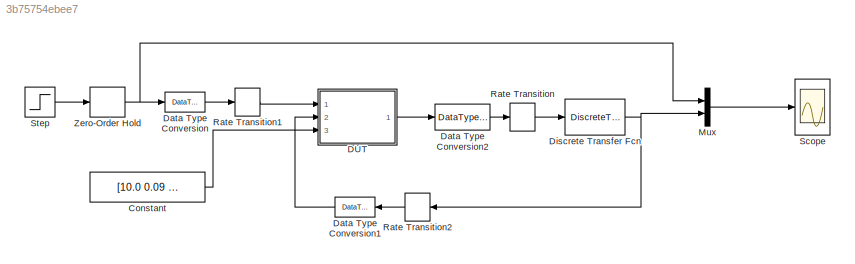
MODEL slx_3b75754ebee7
KIND model
CONFIG AbsTol = auto
CONFIG FixedStep = auto
CONFIG MaxStep = auto
CONFIG MinStep = auto
CONFIG RelTol = 1e-3
CONFIG SampleTimeConstraint = Unconstrained
CONFIG Solver = FixedStepDiscrete
CONFIG SolverMode = SingleTasking
CONFIG SolverName = FixedStepDiscrete
CONFIG StartTime = 0.0
CONFIG StopTime = 10
BLOCK [Constant] Constant
  OutDataTypeStr = fixdt(0,16,11)
  SampleTime = -1
  Value = [10.0 0.09 0.1]
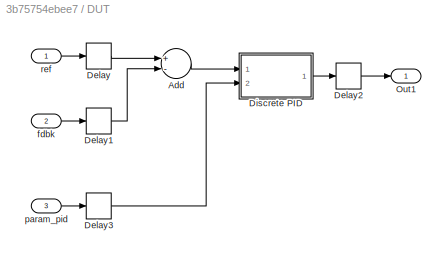
BLOCK [SubSystem] DUT
  Ports = [3, 1]
  RequestExecContextInheritance = off
  Variant = off
BLOCK [Sum] DUT/Add
  InputSameDT = off
  Inputs = +-
  OutDataTypeStr = fixdt(1,24,19)
  Ports = [2, 1]
  RndMeth = Nearest
  SaturateOnIntegerOverflow = off
BLOCK [Delay] DUT/Delay
  DelayLength = 1
  InputPortMap = u0
  Ports = [1, 1]
BLOCK [Delay] DUT/Delay1
  DelayLength = 1
  InputPortMap = u0
  Ports = [1, 1]
BLOCK [Delay] DUT/Delay2
  DelayLength = 1
  InputPortMap = u0
  Ports = [1, 1]
BLOCK [Delay] DUT/Delay3
  DelayLength = 1
  InputPortMap = u0
  Ports = [1, 1]
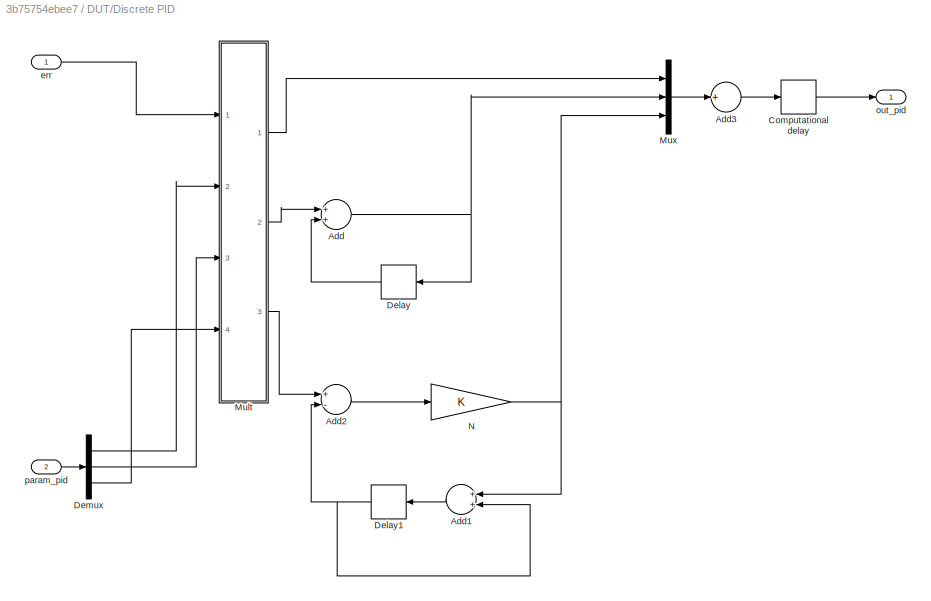
BLOCK [SubSystem] DUT/Discrete PID
  Ports = [2, 1]
  RequestExecContextInheritance = off
  Variant = off
BLOCK [Sum] DUT/Discrete PID/Add
  InputSameDT = off
  Ports = [2, 1]
  SaturateOnIntegerOverflow = off
BLOCK [Sum] DUT/Discrete PID/Add1
  InputSameDT = off
  Ports = [2, 1]
  SaturateOnIntegerOverflow = off
BLOCK [Sum] DUT/Discrete PID/Add2
  InputSameDT = off
  Inputs = +-
  Ports = [2, 1]
  SaturateOnIntegerOverflow = off
BLOCK [Sum] DUT/Discrete PID/Add3
  InputSameDT = off
  Inputs = +
  OutDataTypeStr = Inherit: Inherit via internal rule
  Ports = [1, 1]
  SaturateOnIntegerOverflow = off
BLOCK [Delay] DUT/Discrete PID/Computational delay
  DelayLength = 1
  InputPortMap = u0
  InputProcessing = Inherited
  Ports = [1, 1]
BLOCK [Delay] DUT/Discrete PID/Delay
  DelayLength = 1
  InputPortMap = u0
  InputProcessing = Inherited
  Ports = [1, 1]
BLOCK [Delay] DUT/Discrete PID/Delay1
  DelayLength = 1
  InputPortMap = u0
  InputProcessing = Inherited
  Ports = [1, 1]
BLOCK [Demux] DUT/Discrete PID/Demux
  DisplayOption = bar
  Outputs = 3
  Ports = [1, 3]
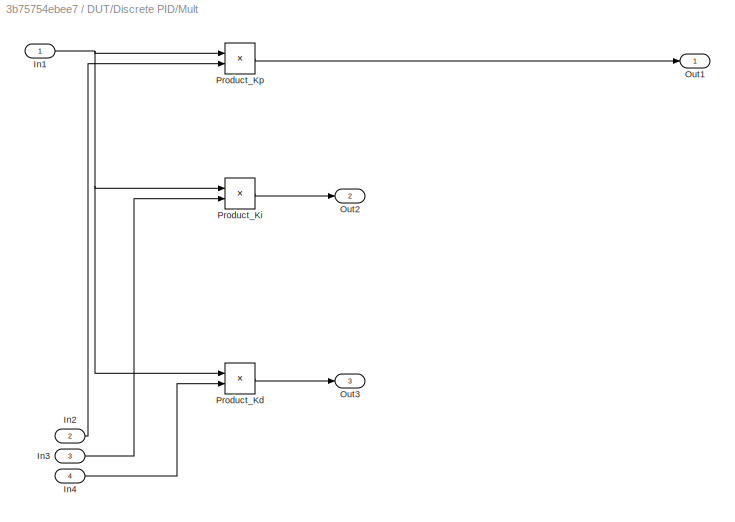
BLOCK [SubSystem] DUT/Discrete PID/Mult
  AttributesFormatString = ----HDL----\nSharingFactor = 3
  Ports = [4, 3]
  RequestExecContextInheritance = off
  Variant = off
BLOCK [Inport] DUT/Discrete PID/Mult/In1
  IconDisplay = Port number
BLOCK [Inport] DUT/Discrete PID/Mult/In2
  IconDisplay = Port number
  Port = 2
BLOCK [Inport] DUT/Discrete PID/Mult/In3
  IconDisplay = Port number
  Port = 3
BLOCK [Inport] DUT/Discrete PID/Mult/In4
  IconDisplay = Port number
  Port = 4
BLOCK [Outport] DUT/Discrete PID/Mult/Out1
  IconDisplay = Port number
BLOCK [Outport] DUT/Discrete PID/Mult/Out2
  IconDisplay = Port number
  Port = 2
BLOCK [Outport] DUT/Discrete PID/Mult/Out3
  IconDisplay = Port number
  Port = 3
BLOCK [Product] DUT/Discrete PID/Mult/Product_Kd
  InputSameDT = off
  OutDataTypeStr = fixdt(1,28,23)
  Ports = [2, 1]
  RndMeth = Nearest
  SaturateOnIntegerOverflow = off
BLOCK [Product] DUT/Discrete PID/Mult/Product_Ki
  InputSameDT = off
  OutDataTypeStr = fixdt(1,28,23)
  Ports = [2, 1]
  RndMeth = Nearest
  SaturateOnIntegerOverflow = off
BLOCK [Product] DUT/Discrete PID/Mult/Product_Kp
  InputSameDT = off
  OutDataTypeStr = fixdt(1,28,23)
  Ports = [2, 1]
  RndMeth = Nearest
  SaturateOnIntegerOverflow = off
BLOCK [Mux] DUT/Discrete PID/Mux
  DisplayOption = bar
  Inputs = 3
  Ports = [3, 1]
BLOCK [Gain] DUT/Discrete PID/N
  ParamDataTypeStr = fixdt(0,10,6)
  RndMeth = Nearest
  SaturateOnIntegerOverflow = off
BLOCK [Inport] DUT/Discrete PID/err
  IconDisplay = Port number
BLOCK [Outport] DUT/Discrete PID/out_pid
  IconDisplay = Port number
BLOCK [Inport] DUT/Discrete PID/param_pid
  IconDisplay = Port number
  Port = 2
BLOCK [Outport] DUT/Out1
  IconDisplay = Port number
BLOCK [Inport] DUT/fdbk
  IconDisplay = Port number
  Port = 2
BLOCK [Inport] DUT/param_pid
  IconDisplay = Port number
  Port = 3
BLOCK [Inport] DUT/ref
  IconDisplay = Port number
BLOCK [DataTypeConversion] Data Type Conversion
  OutDataTypeStr = fixdt(1,24,22)
  RndMeth = Nearest
  SaturateOnIntegerOverflow = off
BLOCK [DataTypeConversion] Data Type Conversion1
  OutDataTypeStr = fixdt(1,24,20)
  RndMeth = Nearest
  SaturateOnIntegerOverflow = off
BLOCK [DataTypeConversion] Data Type Conversion2
  OutDataTypeStr = double
  RndMeth = Nearest
  SaturateOnIntegerOverflow = off
BLOCK [DiscreteTransferFcn] Discrete Transfer Fcn
  Denominator = [1 -1.995 0.995]
  InputPortMap = u0
  Numerator = [0.998 0.001 -0.997]*1e-3
  Ports = [1, 1]
  SampleTime = 1/1000
BLOCK [Mux] Mux
  DisplayOption = bar
  Inputs = 2
  Ports = [2, 1]
BLOCK [RateTransition] Rate Transition
  OutPortSampleTime = 1/1000
BLOCK [RateTransition] Rate Transition1
  OutPortSampleTime = 1/1000
BLOCK [RateTransition] Rate Transition2
  OutPortSampleTime = 1/1000
BLOCK [Scope] Scope
  Ports = [1]
  ScopeSpecificationString = Simulink.scopes.TimeScopeBlockCfg('CurrentConfiguration', extmgr.ConfigurationSet(extmgr.Configuration('Core','General UI',true),extmgr.Configuration('Core','Source UI',true),extmgr.Configuration('Sources','WiredSimulink',true,'DataLoggingSaveFormat','StructureWithTime','DataLoggingDecimation','1','DataLoggingDecimateData',true),extmgr.Configuration('Visuals','Time Domain',true,'SerializedDisplays...<+1687ch>
BLOCK [Step] Step
  SampleTime = 0
BLOCK [ZeroOrderHold] Zero-Order Hold
  SampleTime = 1/1000
LINE Constant:1 -> DUT:3
LINE DUT/Add:1 -> DUT/Discrete PID:1
LINE DUT/Delay1:1 -> DUT/Add:2
LINE DUT/Delay2:1 -> DUT/Out1:1
LINE DUT/Delay3:1 -> DUT/Discrete PID:2
LINE DUT/Delay:1 -> DUT/Add:1
LINE DUT/Discrete PID/Add1:1 -> DUT/Discrete PID/Delay1:1
LINE DUT/Discrete PID/Add2:1 -> DUT/Discrete PID/N:1
LINE DUT/Discrete PID/Add3:1 -> DUT/Discrete PID/Computational delay:1
NET DUT/Discrete PID/Add:1 -> DUT/Discrete PID/Delay:1, DUT/Discrete PID/Mux:2
LINE DUT/Discrete PID/Computational delay:1 -> DUT/Discrete PID/out_pid:1
NET DUT/Discrete PID/Delay1:1 -> DUT/Discrete PID/Add1:2, DUT/Discrete PID/Add2:2
LINE DUT/Discrete PID/Delay:1 -> DUT/Discrete PID/Add:2
LINE DUT/Discrete PID/Demux:1 -> DUT/Discrete PID/Mult:2
LINE DUT/Discrete PID/Demux:2 -> DUT/Discrete PID/Mult:3
LINE DUT/Discrete PID/Demux:3 -> DUT/Discrete PID/Mult:4
NET DUT/Discrete PID/Mult/In1:1 -> DUT/Discrete PID/Mult/Product_Kd:1, DUT/Discrete PID/Mult/Product_Ki:1, DUT/Discrete PID/Mult/Product_Kp:1
LINE DUT/Discrete PID/Mult/In2:1 -> DUT/Discrete PID/Mult/Product_Kp:2
LINE DUT/Discrete PID/Mult/In3:1 -> DUT/Discrete PID/Mult/Product_Ki:2
LINE DUT/Discrete PID/Mult/In4:1 -> DUT/Discrete PID/Mult/Product_Kd:2
LINE DUT/Discrete PID/Mult/Product_Kd:1 -> DUT/Discrete PID/Mult/Out3:1
LINE DUT/Discrete PID/Mult/Product_Ki:1 -> DUT/Discrete PID/Mult/Out2:1
LINE DUT/Discrete PID/Mult/Product_Kp:1 -> DUT/Discrete PID/Mult/Out1:1
LINE DUT/Discrete PID/Mult:1 -> DUT/Discrete PID/Mux:1
LINE DUT/Discrete PID/Mult:2 -> DUT/Discrete PID/Add:1
LINE DUT/Discrete PID/Mult:3 -> DUT/Discrete PID/Add2:1
LINE DUT/Discrete PID/Mux:1 -> DUT/Discrete PID/Add3:1
NET DUT/Discrete PID/N:1 -> DUT/Discrete PID/Add1:1, DUT/Discrete PID/Mux:3
LINE DUT/Discrete PID/err:1 -> DUT/Discrete PID/Mult:1
LINE DUT/Discrete PID/param_pid:1 -> DUT/Discrete PID/Demux:1
LINE DUT/Discrete PID:1 -> DUT/Delay2:1
LINE DUT/fdbk:1 -> DUT/Delay1:1
LINE DUT/param_pid:1 -> DUT/Delay3:1
LINE DUT/ref:1 -> DUT/Delay:1
LINE DUT:1 -> Data Type Conversion2:1
LINE Data Type Conversion1:1 -> DUT:2
LINE Data Type Conversion2:1 -> Rate Transition:1
LINE Data Type Conversion:1 -> Rate Transition1:1
NET Discrete Transfer Fcn:1 -> Mux:2, Rate Transition2:1
LINE Mux:1 -> Scope:1
LINE Rate Transition1:1 -> DUT:1
LINE Rate Transition2:1 -> Data Type Conversion1:1
LINE Rate Transition:1 -> Discrete Transfer Fcn:1
LINE Step:1 -> Zero-Order Hold:1
NET Zero-Order Hold:1 -> Data Type Conversion:1, Mux:1
note: NET lines group one-source signal fan-out (src -> all destinations, sorted); 1:1 wires keep LINE
